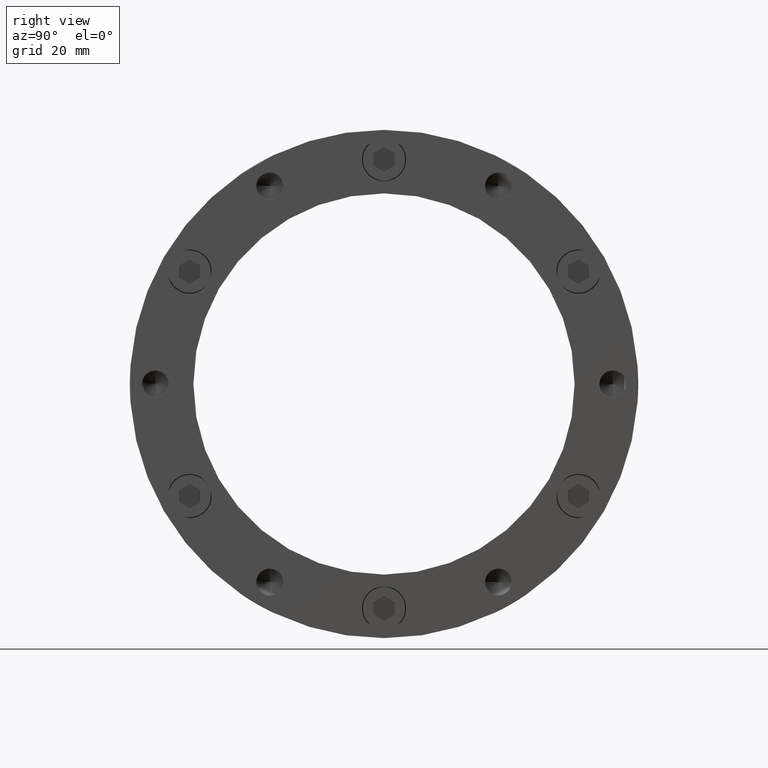
[diagram: clean part render]
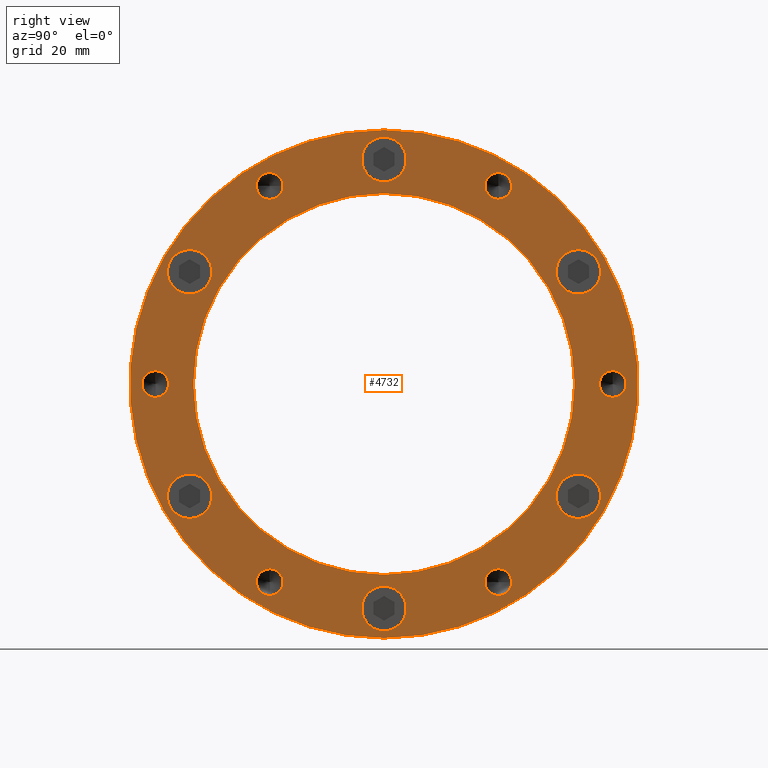
[diagram: same view with one face highlighted and labeled with its STEP entity id]
A machine part, right view. The second image highlights one B-rep face of the part: STEP entity #4732.
In plain terms, the highlighted planar face has unit normal (1, 0, 0).
Its self-contained STEP definition (entity closure, byte-faithful):
#107 = CARTESIAN_POINT ( 'NONE',  ( 31.99999999999998600, 26.99999999999999600, 43.61537180435970400 ) ) ;
#111 = CARTESIAN_POINT ( 'NONE',  ( 31.99999999999998600, 26.99999999999999600, 49.91537180435970100 ) ) ;
#114 = CARTESIAN_POINT ( 'NONE',  ( 31.99999999999998600, 53.99999999999999300, 3.150000000000022100 ) ) ;
#115 = CARTESIAN_POINT ( 'NONE',  ( 31.99999999999998600, 53.99999999999999300, -3.149999999999977700 ) ) ;
#118 = CARTESIAN_POINT ( 'NONE',  ( 31.99999999999998600, 27.00000000000002800, -43.61537180435965400 ) ) ;
#119 = CARTESIAN_POINT ( 'NONE',  ( 31.99999999999998600, 27.00000000000002800, -49.91537180435965800 ) ) ;
#123 = CARTESIAN_POINT ( 'NONE',  ( 31.99999999999998600, -26.99999999999996100, -43.61537180435971100 ) ) ;
#124 = CARTESIAN_POINT ( 'NONE',  ( 31.99999999999998600, -26.99999999999996100, -49.91537180435970800 ) ) ;
#127 = CARTESIAN_POINT ( 'NONE',  ( 31.99999999999998600, -53.99999999999999300, 3.149999999999955900 ) ) ;
#128 = CARTESIAN_POINT ( 'NONE',  ( 31.99999999999998600, -53.99999999999999300, -3.150000000000044300 ) ) ;
#132 = CARTESIAN_POINT ( 'NONE',  ( 31.99999999999998600, -27.00000000000003600, 49.91537180435965800 ) ) ;
#134 = CARTESIAN_POINT ( 'NONE',  ( 31.99999999999998600, -27.00000000000003600, 43.61537180435965400 ) ) ;
#137 = CARTESIAN_POINT ( 'NONE',  ( 31.99999999999998600, 45.89934640057529700, 31.74999999999997900 ) ) ;
#138 = CARTESIAN_POINT ( 'NONE',  ( 31.99999999999998600, 45.89934640057529700, 21.24999999999997900 ) ) ;
#141 = CARTESIAN_POINT ( 'NONE',  ( 31.99999999999998600, 45.89934640057525400, -21.25000000000003600 ) ) ;
#142 = CARTESIAN_POINT ( 'NONE',  ( 31.99999999999998600, 45.89934640057525400, -31.75000000000003600 ) ) ;
#145 = CARTESIAN_POINT ( 'NONE',  ( 31.99999999999998600, -8.238844430447640300E-015, -47.75000000000002800 ) ) ;
#146 = CARTESIAN_POINT ( 'NONE',  ( 31.99999999999998600, -8.881783999999999800E-015, -58.25000000000002100 ) ) ;
#149 = CARTESIAN_POINT ( 'NONE',  ( 31.99999999999998600, -45.89934640057527600, -21.25000000000000000 ) ) ;
#150 = CARTESIAN_POINT ( 'NONE',  ( 31.99999999999998600, -45.89934640057527600, -31.75000000000000000 ) ) ;
#153 = CARTESIAN_POINT ( 'NONE',  ( 31.99999999999998600, -45.89934640057526800, 31.75000000000001400 ) ) ;
#154 = CARTESIAN_POINT ( 'NONE',  ( 31.99999999999998600, -45.89934640057526800, 21.25000000000001400 ) ) ;
#157 = CARTESIAN_POINT ( 'NONE',  ( 31.99999999999998600, 6.429395695523607100E-016, 58.25000000000002100 ) ) ;
#158 = CARTESIAN_POINT ( 'NONE',  ( 31.99999999999998600, 0.0000000000000000000, 47.75000000000002800 ) ) ;
#161 = CARTESIAN_POINT ( 'NONE',  ( 31.99999999999998600, 5.510910596163089600E-015, 45.00000000000000000 ) ) ;
#162 = CARTESIAN_POINT ( 'NONE',  ( 31.99999999999998600, 0.0000000000000000000, -45.00000000000000000 ) ) ;
#164 = CARTESIAN_POINT ( 'NONE',  ( 31.99999999999998600, 0.0000000000000000000, -60.00000000000000000 ) ) ;
#165 = CARTESIAN_POINT ( 'NONE',  ( 31.99999999999998600, 7.347880794884118400E-015, 60.00000000000000000 ) ) ;
#192 = CARTESIAN_POINT ( 'NONE',  ( 31.99999999999998600, -53.99999999999999300, -4.440892000000000200E-014 ) ) ;
#193 = DIRECTION ( 'NONE',  ( -1.000000000000000000, -0.0000000000000000000, -0.0000000000000000000 ) ) ;
#194 = DIRECTION ( 'NONE',  ( 0.0000000000000000000, 0.0000000000000000000, -1.000000000000000000 ) ) ;
#473 = EDGE_LOOP ( 'NONE', ( #2227, #2226 ) ) ;
#474 = EDGE_LOOP ( 'NONE', ( #2217, #2216 ) ) ;
#476 = EDGE_LOOP ( 'NONE', ( #2225, #2224 ) ) ;
#477 = EDGE_LOOP ( 'NONE', ( #2219, #2218 ) ) ;
#478 = EDGE_LOOP ( 'NONE', ( #2221, #2220 ) ) ;
#479 = EDGE_LOOP ( 'NONE', ( #2223, #2222 ) ) ;
#480 = EDGE_LOOP ( 'NONE', ( #2215, #2214 ) ) ;
#481 = EDGE_LOOP ( 'NONE', ( #2213, #2212 ) ) ;
#482 = EDGE_LOOP ( 'NONE', ( #2211, #2210 ) ) ;
#483 = EDGE_LOOP ( 'NONE', ( #2209, #2208 ) ) ;
#484 = EDGE_LOOP ( 'NONE', ( #2207, #2206 ) ) ;
#485 = EDGE_LOOP ( 'NONE', ( #2205, #2204 ) ) ;
#486 = EDGE_LOOP ( 'NONE', ( #2203, #2202 ) ) ;
#487 = EDGE_LOOP ( 'NONE', ( #2201, #2200 ) ) ;
#760 = AXIS2_PLACEMENT_3D ( 'NONE', #2900, #2901, #2902 ) ;
#762 = AXIS2_PLACEMENT_3D ( 'NONE', #2890, #2891, #2892 ) ;
#764 = AXIS2_PLACEMENT_3D ( 'NONE', #2881, #2882, #2883 ) ;
#765 = AXIS2_PLACEMENT_3D ( 'NONE', #2877, #2878, #2879 ) ;
#768 = AXIS2_PLACEMENT_3D ( 'NONE', #2863, #2864, #2865 ) ;
#770 = AXIS2_PLACEMENT_3D ( 'NONE', #2853, #2854, #2855 ) ;
#772 = AXIS2_PLACEMENT_3D ( 'NONE', #2844, #2845, #2846 ) ;
#775 = AXIS2_PLACEMENT_3D ( 'NONE', #1975, #1976, #1977 ) ;
#776 = AXIS2_PLACEMENT_3D ( 'NONE', #1967, #1968, #1969 ) ;
#822 = AXIS2_PLACEMENT_3D ( 'NONE', #1473, #1474, #1475 ) ;
#826 = AXIS2_PLACEMENT_3D ( 'NONE', #1466, #1467, #1468 ) ;
#830 = AXIS2_PLACEMENT_3D ( 'NONE', #1460, #1461, #1462 ) ;
#834 = AXIS2_PLACEMENT_3D ( 'NONE', #1454, #1455, #1456 ) ;
#840 = AXIS2_PLACEMENT_3D ( 'NONE', #1448, #1449, #1450 ) ;
#844 = AXIS2_PLACEMENT_3D ( 'NONE', #1441, #1442, #1443 ) ;
#845 = AXIS2_PLACEMENT_3D ( 'NONE', #1438, #1439, #1440 ) ;
#847 = AXIS2_PLACEMENT_3D ( 'NONE', #1435, #1436, #1437 ) ;
#849 = AXIS2_PLACEMENT_3D ( 'NONE', #1431, #1432, #1433 ) ;
#851 = AXIS2_PLACEMENT_3D ( 'NONE', #1427, #1428, #1429 ) ;
#870 = AXIS2_PLACEMENT_3D ( 'NONE', #1498, #1499, #1500 ) ;
#872 = AXIS2_PLACEMENT_3D ( 'NONE', #1495, #1496, #1497 ) ;
#874 = AXIS2_PLACEMENT_3D ( 'NONE', #1492, #1493, #1494 ) ;
#877 = AXIS2_PLACEMENT_3D ( 'NONE', #1486, #1487, #1488 ) ;
#887 = AXIS2_PLACEMENT_3D ( 'NONE', #1095, #1096, #1097 ) ;
#889 = AXIS2_PLACEMENT_3D ( 'NONE', #1084, #1085, #1086 ) ;
#893 = AXIS2_PLACEMENT_3D ( 'NONE', #1068, #1069, #1070 ) ;
#897 = AXIS2_PLACEMENT_3D ( 'NONE', #1050, #1051, #1052 ) ;
#902 = AXIS2_PLACEMENT_3D ( 'NONE', #192, #193, #194 ) ;
#1050 = CARTESIAN_POINT ( 'NONE',  ( 31.99999999999998600, -26.99999999999996100, -46.76537180435971000 ) ) ;
#1051 = DIRECTION ( 'NONE',  ( -1.000000000000000000, -0.0000000000000000000, -0.0000000000000000000 ) ) ;
#1052 = DIRECTION ( 'NONE',  ( 0.0000000000000000000, 0.0000000000000000000, -1.000000000000000000 ) ) ;
#1068 = CARTESIAN_POINT ( 'NONE',  ( 31.99999999999998600, 27.00000000000002800, -46.76537180435965300 ) ) ;
#1069 = DIRECTION ( 'NONE',  ( -1.000000000000000000, -0.0000000000000000000, -0.0000000000000000000 ) ) ;
#1070 = DIRECTION ( 'NONE',  ( 0.0000000000000000000, 0.0000000000000000000, -1.000000000000000000 ) ) ;
#1084 = CARTESIAN_POINT ( 'NONE',  ( 31.99999999999998600, 53.99999999999999300, 2.220446000000000100E-014 ) ) ;
#1085 = DIRECTION ( 'NONE',  ( -1.000000000000000000, -0.0000000000000000000, -0.0000000000000000000 ) ) ;
#1086 = DIRECTION ( 'NONE',  ( 0.0000000000000000000, 0.0000000000000000000, -1.000000000000000000 ) ) ;
#1095 = CARTESIAN_POINT ( 'NONE',  ( 31.99999999999998600, 26.99999999999999600, 46.76537180435970200 ) ) ;
#1096 = DIRECTION ( 'NONE',  ( -1.000000000000000000, -0.0000000000000000000, -0.0000000000000000000 ) ) ;
#1097 = DIRECTION ( 'NONE',  ( 0.0000000000000000000, 0.0000000000000000000, -1.000000000000000000 ) ) ;
#1427 = CARTESIAN_POINT ( 'NONE',  ( 31.99999999999998600, 26.99999999999999600, 46.76537180435970200 ) ) ;
#1428 = DIRECTION ( 'NONE',  ( -1.000000000000000000, -0.0000000000000000000, -0.0000000000000000000 ) ) ;
#1429 = DIRECTION ( 'NONE',  ( 0.0000000000000000000, 0.0000000000000000000, -1.000000000000000000 ) ) ;
#1431 = CARTESIAN_POINT ( 'NONE',  ( 31.99999999999998600, 53.99999999999999300, 2.220446000000000100E-014 ) ) ;
#1432 = DIRECTION ( 'NONE',  ( -1.000000000000000000, -0.0000000000000000000, -0.0000000000000000000 ) ) ;
#1433 = DIRECTION ( 'NONE',  ( 0.0000000000000000000, 0.0000000000000000000, -1.000000000000000000 ) ) ;
#1435 = CARTESIAN_POINT ( 'NONE',  ( 31.99999999999998600, 27.00000000000002800, -46.76537180435965300 ) ) ;
#1436 = DIRECTION ( 'NONE',  ( -1.000000000000000000, -0.0000000000000000000, -0.0000000000000000000 ) ) ;
#1437 = DIRECTION ( 'NONE',  ( 0.0000000000000000000, 0.0000000000000000000, -1.000000000000000000 ) ) ;
#1438 = CARTESIAN_POINT ( 'NONE',  ( 31.99999999999998600, -26.99999999999996100, -46.76537180435971000 ) ) ;
#1439 = DIRECTION ( 'NONE',  ( -1.000000000000000000, -0.0000000000000000000, -0.0000000000000000000 ) ) ;
#1440 = DIRECTION ( 'NONE',  ( 0.0000000000000000000, 0.0000000000000000000, -1.000000000000000000 ) ) ;
#1441 = CARTESIAN_POINT ( 'NONE',  ( 31.99999999999998600, -53.99999999999999300, -4.440892000000000200E-014 ) ) ;
#1442 = DIRECTION ( 'NONE',  ( -1.000000000000000000, -0.0000000000000000000, -0.0000000000000000000 ) ) ;
#1443 = DIRECTION ( 'NONE',  ( 0.0000000000000000000, 0.0000000000000000000, -1.000000000000000000 ) ) ;
#1448 = CARTESIAN_POINT ( 'NONE',  ( 31.99999999999998600, -27.00000000000003600, 46.76537180435965300 ) ) ;
#1449 = DIRECTION ( 'NONE',  ( -1.000000000000000000, -0.0000000000000000000, -0.0000000000000000000 ) ) ;
#1450 = DIRECTION ( 'NONE',  ( 0.0000000000000000000, 0.0000000000000000000, -1.000000000000000000 ) ) ;
#1454 = CARTESIAN_POINT ( 'NONE',  ( 31.99999999999998600, 45.89934640057529700, 26.49999999999997900 ) ) ;
#1455 = DIRECTION ( 'NONE',  ( -1.000000000000000000, -0.0000000000000000000, -0.0000000000000000000 ) ) ;
#1456 = DIRECTION ( 'NONE',  ( 0.0000000000000000000, 0.0000000000000000000, -1.000000000000000000 ) ) ;
#1460 = CARTESIAN_POINT ( 'NONE',  ( 31.99999999999998600, 45.89934640057525400, -26.50000000000003900 ) ) ;
#1461 = DIRECTION ( 'NONE',  ( -1.000000000000000000, -0.0000000000000000000, -0.0000000000000000000 ) ) ;
#1462 = DIRECTION ( 'NONE',  ( 0.0000000000000000000, 0.0000000000000000000, -1.000000000000000000 ) ) ;
#1466 = CARTESIAN_POINT ( 'NONE',  ( 31.99999999999998600, -8.881783999999999800E-015, -53.00000000000002800 ) ) ;
#1467 = DIRECTION ( 'NONE',  ( -1.000000000000000000, -0.0000000000000000000, -0.0000000000000000000 ) ) ;
#1468 = DIRECTION ( 'NONE',  ( 0.0000000000000000000, 0.0000000000000000000, -1.000000000000000000 ) ) ;
#1473 = CARTESIAN_POINT ( 'NONE',  ( 31.99999999999998600, -45.89934640057527600, -26.50000000000000400 ) ) ;
#1474 = DIRECTION ( 'NONE',  ( -1.000000000000000000, -0.0000000000000000000, -0.0000000000000000000 ) ) ;
#1475 = DIRECTION ( 'NONE',  ( 0.0000000000000000000, 0.0000000000000000000, -1.000000000000000000 ) ) ;
#1486 = CARTESIAN_POINT ( 'NONE',  ( 31.99999999999998600, -45.89934640057526800, 26.50000000000001800 ) ) ;
#1487 = DIRECTION ( 'NONE',  ( -1.000000000000000000, -0.0000000000000000000, -0.0000000000000000000 ) ) ;
#1488 = DIRECTION ( 'NONE',  ( 0.0000000000000000000, 0.0000000000000000000, -1.000000000000000000 ) ) ;
#1492 = CARTESIAN_POINT ( 'NONE',  ( 31.99999999999998600, 0.0000000000000000000, 53.00000000000002800 ) ) ;
#1493 = DIRECTION ( 'NONE',  ( -1.000000000000000000, -0.0000000000000000000, -0.0000000000000000000 ) ) ;
#1494 = DIRECTION ( 'NONE',  ( 0.0000000000000000000, 0.0000000000000000000, -1.000000000000000000 ) ) ;
#1495 = CARTESIAN_POINT ( 'NONE',  ( 31.99999999999998600, 0.0000000000000000000, 0.0000000000000000000 ) ) ;
#1496 = DIRECTION ( 'NONE',  ( -1.000000000000000000, -0.0000000000000000000, -0.0000000000000000000 ) ) ;
#1497 = DIRECTION ( 'NONE',  ( 0.0000000000000000000, 0.0000000000000000000, -1.000000000000000000 ) ) ;
#1498 = CARTESIAN_POINT ( 'NONE',  ( 31.99999999999998600, 0.0000000000000000000, 0.0000000000000000000 ) ) ;
#1499 = DIRECTION ( 'NONE',  ( -1.000000000000000000, -0.0000000000000000000, -0.0000000000000000000 ) ) ;
#1500 = DIRECTION ( 'NONE',  ( 0.0000000000000000000, 0.0000000000000000000, -1.000000000000000000 ) ) ;
#1967 = CARTESIAN_POINT ( 'NONE',  ( 31.99999999999998600, -27.00000000000003600, 46.76537180435965300 ) ) ;
#1968 = DIRECTION ( 'NONE',  ( -1.000000000000000000, -0.0000000000000000000, -0.0000000000000000000 ) ) ;
#1969 = DIRECTION ( 'NONE',  ( 0.0000000000000000000, 0.0000000000000000000, -1.000000000000000000 ) ) ;
#1975 = CARTESIAN_POINT ( 'NONE',  ( 31.99999999999998600, 0.0000000000000000000, 0.0000000000000000000 ) ) ;
#1976 = DIRECTION ( 'NONE',  ( -1.000000000000000000, -0.0000000000000000000, -0.0000000000000000000 ) ) ;
#1977 = DIRECTION ( 'NONE',  ( 0.0000000000000000000, 0.0000000000000000000, -1.000000000000000000 ) ) ;
#2004 = AXIS2_PLACEMENT_3D ( 'NONE', #3308, #3304, #3310 ) ;
#2200 = ORIENTED_EDGE ( 'NONE', *, *, #4536, .F. ) ;
#2201 = ORIENTED_EDGE ( 'NONE', *, *, #4291, .F. ) ;
#2202 = ORIENTED_EDGE ( 'NONE', *, *, #4265, .T. ) ;
#2203 = ORIENTED_EDGE ( 'NONE', *, *, #4205, .T. ) ;
#2204 = ORIENTED_EDGE ( 'NONE', *, *, #4266, .T. ) ;
#2205 = ORIENTED_EDGE ( 'NONE', *, *, #4201, .T. ) ;
#2206 = ORIENTED_EDGE ( 'NONE', *, *, #4268, .T. ) ;
#2207 = ORIENTED_EDGE ( 'NONE', *, *, #4195, .T. ) ;
#2208 = ORIENTED_EDGE ( 'NONE', *, *, #4270, .T. ) ;
#2209 = ORIENTED_EDGE ( 'NONE', *, *, #4188, .T. ) ;
#2210 = ORIENTED_EDGE ( 'NONE', *, *, #4271, .T. ) ;
#2211 = ORIENTED_EDGE ( 'NONE', *, *, #4178, .T. ) ;
#2212 = ORIENTED_EDGE ( 'NONE', *, *, #4273, .T. ) ;
#2213 = ORIENTED_EDGE ( 'NONE', *, *, #4533, .T. ) ;
#2214 = ORIENTED_EDGE ( 'NONE', *, *, #4275, .T. ) ;
#2215 = ORIENTED_EDGE ( 'NONE', *, *, #4557, .T. ) ;
#2216 = ORIENTED_EDGE ( 'NONE', *, *, #4277, .T. ) ;
#2217 = ORIENTED_EDGE ( 'NONE', *, *, #4565, .T. ) ;
#2218 = ORIENTED_EDGE ( 'NONE', *, *, #4279, .T. ) ;
#2219 = ORIENTED_EDGE ( 'NONE', *, *, #4562, .T. ) ;
#2220 = ORIENTED_EDGE ( 'NONE', *, *, #4281, .T. ) ;
#2221 = ORIENTED_EDGE ( 'NONE', *, *, #4558, .T. ) ;
#2222 = ORIENTED_EDGE ( 'NONE', *, *, #4287, .T. ) ;
#2223 = ORIENTED_EDGE ( 'NONE', *, *, #4551, .T. ) ;
#2224 = ORIENTED_EDGE ( 'NONE', *, *, #4289, .T. ) ;
#2225 = ORIENTED_EDGE ( 'NONE', *, *, #4547, .T. ) ;
#2226 = ORIENTED_EDGE ( 'NONE', *, *, #4290, .T. ) ;
#2227 = ORIENTED_EDGE ( 'NONE', *, *, #4543, .T. ) ;
#2305 = CIRCLE ( 'NONE', #847, 3.149999999999999900 ) ;
#2310 = CIRCLE ( 'NONE', #851, 3.149999999999999900 ) ;
#2311 = CIRCLE ( 'NONE', #849, 3.149999999999999900 ) ;
#2313 = CIRCLE ( 'NONE', #845, 3.149999999999999900 ) ;
#2318 = CIRCLE ( 'NONE', #844, 3.149999999999999900 ) ;
#2320 = CIRCLE ( 'NONE', #840, 3.149999999999999900 ) ;
#2321 = CIRCLE ( 'NONE', #834, 5.250000000000000900 ) ;
#2323 = CIRCLE ( 'NONE', #830, 5.249999999999997300 ) ;
#2325 = CIRCLE ( 'NONE', #826, 5.249999999999997300 ) ;
#2327 = CIRCLE ( 'NONE', #822, 5.249999999999997300 ) ;
#2333 = CIRCLE ( 'NONE', #877, 5.250000000000000900 ) ;
#2338 = CIRCLE ( 'NONE', #874, 5.249999999999997300 ) ;
#2339 = CIRCLE ( 'NONE', #872, 45.00000000000000000 ) ;
#2340 = CIRCLE ( 'NONE', #870, 60.00000000000000000 ) ;
#2443 = CIRCLE ( 'NONE', #776, 3.149999999999999900 ) ;
#2450 = CIRCLE ( 'NONE', #775, 60.00000000000000000 ) ;
#2463 = CIRCLE ( 'NONE', #770, 5.249999999999997300 ) ;
#2465 = CIRCLE ( 'NONE', #772, 45.00000000000000000 ) ;
#2474 = CIRCLE ( 'NONE', #768, 5.250000000000000900 ) ;
#2482 = CIRCLE ( 'NONE', #765, 5.250000000000000900 ) ;
#2488 = CIRCLE ( 'NONE', #764, 5.249999999999997300 ) ;
#2490 = CIRCLE ( 'NONE', #762, 5.249999999999997300 ) ;
#2498 = CIRCLE ( 'NONE', #760, 5.249999999999997300 ) ;
#2775 = FACE_BOUND ( 'NONE', #479, .T. ) ;
#2777 = FACE_BOUND ( 'NONE', #477, .T. ) ;
#2788 = FACE_BOUND ( 'NONE', #473, .T. ) ;
#2790 = FACE_BOUND ( 'NONE', #478, .T. ) ;
#2791 = FACE_BOUND ( 'NONE', #476, .T. ) ;
#2792 = FACE_BOUND ( 'NONE', #474, .T. ) ;
#2793 = FACE_BOUND ( 'NONE', #480, .T. ) ;
#2794 = FACE_BOUND ( 'NONE', #481, .T. ) ;
#2795 = FACE_BOUND ( 'NONE', #482, .T. ) ;
#2796 = FACE_BOUND ( 'NONE', #483, .T. ) ;
#2797 = FACE_BOUND ( 'NONE', #484, .T. ) ;
#2798 = FACE_BOUND ( 'NONE', #485, .T. ) ;
#2799 = FACE_BOUND ( 'NONE', #486, .T. ) ;
#2800 = FACE_OUTER_BOUND ( 'NONE', #487, .T. ) ;
#2844 = CARTESIAN_POINT ( 'NONE',  ( 31.99999999999998600, 0.0000000000000000000, 0.0000000000000000000 ) ) ;
#2845 = DIRECTION ( 'NONE',  ( -1.000000000000000000, -0.0000000000000000000, -0.0000000000000000000 ) ) ;
#2846 = DIRECTION ( 'NONE',  ( 0.0000000000000000000, 0.0000000000000000000, -1.000000000000000000 ) ) ;
#2853 = CARTESIAN_POINT ( 'NONE',  ( 31.99999999999998600, 0.0000000000000000000, 53.00000000000002800 ) ) ;
#2854 = DIRECTION ( 'NONE',  ( -1.000000000000000000, -0.0000000000000000000, -0.0000000000000000000 ) ) ;
#2855 = DIRECTION ( 'NONE',  ( 0.0000000000000000000, 0.0000000000000000000, -1.000000000000000000 ) ) ;
#2863 = CARTESIAN_POINT ( 'NONE',  ( 31.99999999999998600, -45.89934640057526800, 26.50000000000001800 ) ) ;
#2864 = DIRECTION ( 'NONE',  ( -1.000000000000000000, -0.0000000000000000000, -0.0000000000000000000 ) ) ;
#2865 = DIRECTION ( 'NONE',  ( 0.0000000000000000000, 0.0000000000000000000, -1.000000000000000000 ) ) ;
#2877 = CARTESIAN_POINT ( 'NONE',  ( 31.99999999999998600, 45.89934640057529700, 26.49999999999997900 ) ) ;
#2878 = DIRECTION ( 'NONE',  ( -1.000000000000000000, -0.0000000000000000000, -0.0000000000000000000 ) ) ;
#2879 = DIRECTION ( 'NONE',  ( 0.0000000000000000000, 0.0000000000000000000, -1.000000000000000000 ) ) ;
#2881 = CARTESIAN_POINT ( 'NONE',  ( 31.99999999999998600, -45.89934640057527600, -26.50000000000000400 ) ) ;
#2882 = DIRECTION ( 'NONE',  ( -1.000000000000000000, -0.0000000000000000000, -0.0000000000000000000 ) ) ;
#2883 = DIRECTION ( 'NONE',  ( 0.0000000000000000000, 0.0000000000000000000, -1.000000000000000000 ) ) ;
#2890 = CARTESIAN_POINT ( 'NONE',  ( 31.99999999999998600, -8.881783999999999800E-015, -53.00000000000002800 ) ) ;
#2891 = DIRECTION ( 'NONE',  ( -1.000000000000000000, -0.0000000000000000000, -0.0000000000000000000 ) ) ;
#2892 = DIRECTION ( 'NONE',  ( 0.0000000000000000000, 0.0000000000000000000, -1.000000000000000000 ) ) ;
#2900 = CARTESIAN_POINT ( 'NONE',  ( 31.99999999999998600, 45.89934640057525400, -26.50000000000003900 ) ) ;
#2901 = DIRECTION ( 'NONE',  ( -1.000000000000000000, -0.0000000000000000000, -0.0000000000000000000 ) ) ;
#2902 = DIRECTION ( 'NONE',  ( 0.0000000000000000000, 0.0000000000000000000, -1.000000000000000000 ) ) ;
#3304 = DIRECTION ( 'NONE',  ( 1.000000000000000000, -0.0000000000000000000, 0.0000000000000000000 ) ) ;
#3308 = CARTESIAN_POINT ( 'NONE',  ( 31.99999999999998600, 52.50000000000000000, 0.0000000000000000000 ) ) ;
#3309 = PLANE ( 'NONE',  #2004 ) ;
#3310 = DIRECTION ( 'NONE',  ( 0.0000000000000000000, 0.0000000000000000000, -1.000000000000000000 ) ) ;
#3834 = VERTEX_POINT ( 'NONE', #111 ) ;
#3835 = VERTEX_POINT ( 'NONE', #107 ) ;
#3838 = VERTEX_POINT ( 'NONE', #114 ) ;
#3839 = VERTEX_POINT ( 'NONE', #115 ) ;
#3842 = VERTEX_POINT ( 'NONE', #118 ) ;
#3843 = VERTEX_POINT ( 'NONE', #119 ) ;
#3847 = VERTEX_POINT ( 'NONE', #123 ) ;
#3848 = VERTEX_POINT ( 'NONE', #124 ) ;
#3851 = VERTEX_POINT ( 'NONE', #127 ) ;
#3852 = VERTEX_POINT ( 'NONE', #128 ) ;
#3856 = VERTEX_POINT ( 'NONE', #132 ) ;
#3858 = VERTEX_POINT ( 'NONE', #134 ) ;
#3861 = VERTEX_POINT ( 'NONE', #137 ) ;
#3862 = VERTEX_POINT ( 'NONE', #138 ) ;
#3865 = VERTEX_POINT ( 'NONE', #141 ) ;
#3866 = VERTEX_POINT ( 'NONE', #142 ) ;
#3869 = VERTEX_POINT ( 'NONE', #145 ) ;
#3870 = VERTEX_POINT ( 'NONE', #146 ) ;
#3873 = VERTEX_POINT ( 'NONE', #149 ) ;
#3874 = VERTEX_POINT ( 'NONE', #150 ) ;
#3877 = VERTEX_POINT ( 'NONE', #153 ) ;
#3878 = VERTEX_POINT ( 'NONE', #154 ) ;
#3881 = VERTEX_POINT ( 'NONE', #157 ) ;
#3882 = VERTEX_POINT ( 'NONE', #158 ) ;
#3885 = VERTEX_POINT ( 'NONE', #161 ) ;
#3886 = VERTEX_POINT ( 'NONE', #162 ) ;
#3888 = VERTEX_POINT ( 'NONE', #164 ) ;
#3889 = VERTEX_POINT ( 'NONE', #165 ) ;
#3991 = CIRCLE ( 'NONE', #902, 3.149999999999999900 ) ;
#4006 = CIRCLE ( 'NONE', #897, 3.149999999999999900 ) ;
#4178 = EDGE_CURVE ( 'NONE', #3852, #3851, #3991, .T. ) ;
#4188 = EDGE_CURVE ( 'NONE', #3848, #3847, #4006, .T. ) ;
#4195 = EDGE_CURVE ( 'NONE', #3843, #3842, #4792, .T. ) ;
#4201 = EDGE_CURVE ( 'NONE', #3839, #3838, #4803, .T. ) ;
#4205 = EDGE_CURVE ( 'NONE', #3835, #3834, #4789, .T. ) ;
#4265 = EDGE_CURVE ( 'NONE', #3834, #3835, #2310, .T. ) ;
#4266 = EDGE_CURVE ( 'NONE', #3838, #3839, #2311, .T. ) ;
#4268 = EDGE_CURVE ( 'NONE', #3842, #3843, #2305, .T. ) ;
#4270 = EDGE_CURVE ( 'NONE', #3847, #3848, #2313, .T. ) ;
#4271 = EDGE_CURVE ( 'NONE', #3851, #3852, #2318, .T. ) ;
#4273 = EDGE_CURVE ( 'NONE', #3856, #3858, #2320, .T. ) ;
#4275 = EDGE_CURVE ( 'NONE', #3861, #3862, #2321, .T. ) ;
#4277 = EDGE_CURVE ( 'NONE', #3865, #3866, #2323, .T. ) ;
#4279 = EDGE_CURVE ( 'NONE', #3869, #3870, #2325, .T. ) ;
#4281 = EDGE_CURVE ( 'NONE', #3873, #3874, #2327, .T. ) ;
#4287 = EDGE_CURVE ( 'NONE', #3877, #3878, #2333, .T. ) ;
#4289 = EDGE_CURVE ( 'NONE', #3881, #3882, #2338, .T. ) ;
#4290 = EDGE_CURVE ( 'NONE', #3885, #3886, #2339, .T. ) ;
#4291 = EDGE_CURVE ( 'NONE', #3888, #3889, #2340, .T. ) ;
#4533 = EDGE_CURVE ( 'NONE', #3858, #3856, #2443, .T. ) ;
#4536 = EDGE_CURVE ( 'NONE', #3889, #3888, #2450, .T. ) ;
#4543 = EDGE_CURVE ( 'NONE', #3886, #3885, #2465, .T. ) ;
#4547 = EDGE_CURVE ( 'NONE', #3882, #3881, #2463, .T. ) ;
#4551 = EDGE_CURVE ( 'NONE', #3878, #3877, #2474, .T. ) ;
#4557 = EDGE_CURVE ( 'NONE', #3862, #3861, #2482, .T. ) ;
#4558 = EDGE_CURVE ( 'NONE', #3874, #3873, #2488, .T. ) ;
#4562 = EDGE_CURVE ( 'NONE', #3870, #3869, #2490, .T. ) ;
#4565 = EDGE_CURVE ( 'NONE', #3866, #3865, #2498, .T. ) ;
#4732 = ADVANCED_FACE ( 'NONE', ( #2788, #2791, #2775, #2790, #2777, #2792, #2793, #2794, #2795, #2796, #2797, #2798, #2799, #2800 ), #3309, .T. ) ;
#4789 = CIRCLE ( 'NONE', #887, 3.149999999999999900 ) ;
#4792 = CIRCLE ( 'NONE', #893, 3.149999999999999900 ) ;
#4803 = CIRCLE ( 'NONE', #889, 3.149999999999999900 ) ;